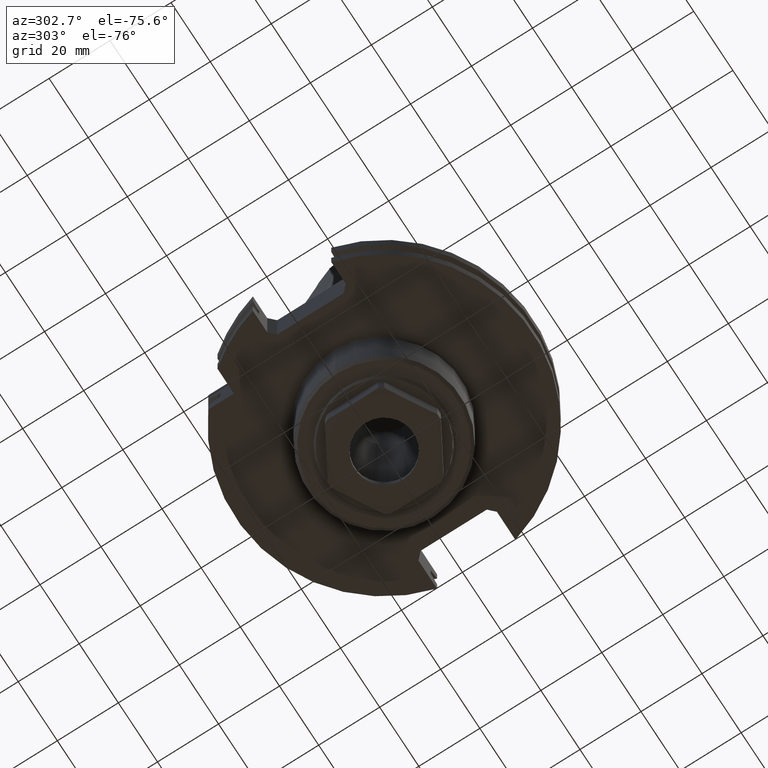
[diagram: clean part render]
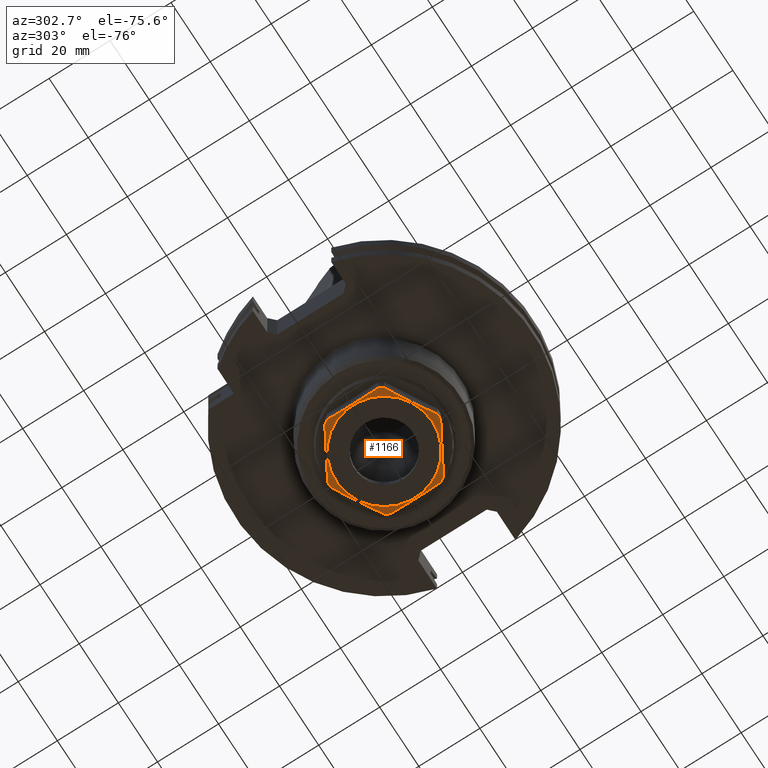
[diagram: same view with one face highlighted and labeled with its STEP entity id]
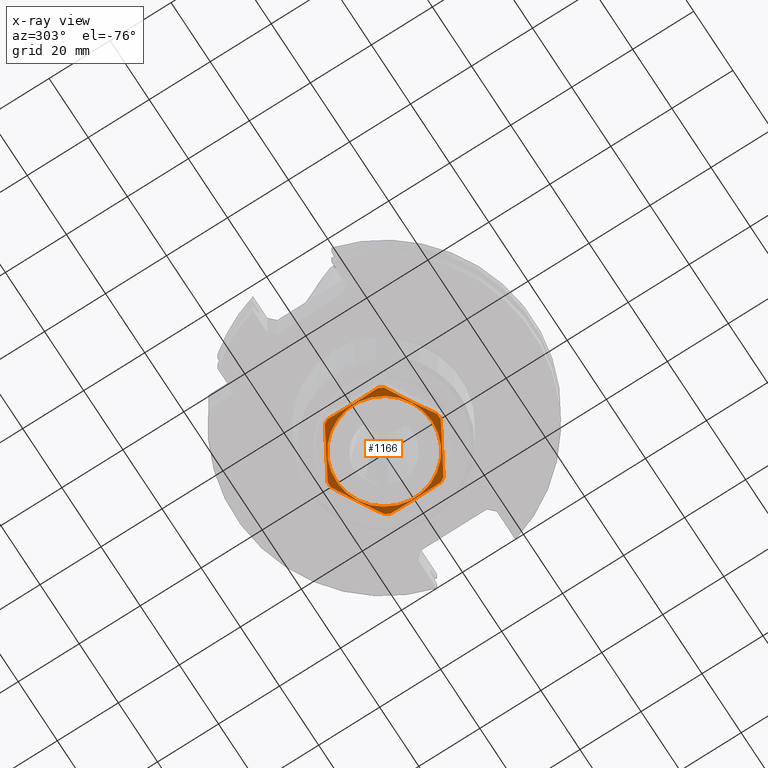
[diagram: x-ray of the same camera — body ghosted, the highlighted face saturated]
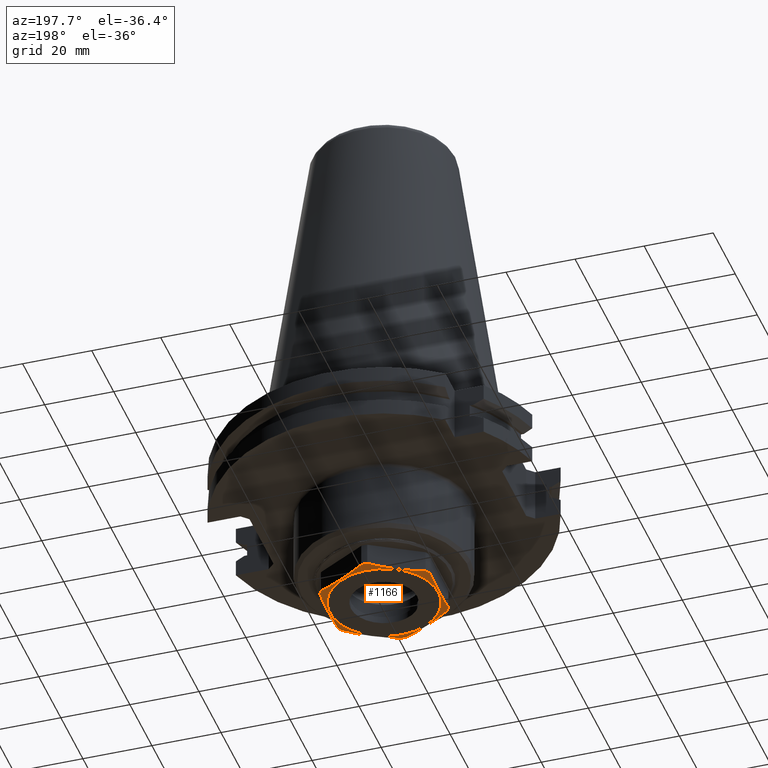
[diagram: same view with one face highlighted and labeled with its STEP entity id]
A machine part, auxiliary view. The second image highlights one B-rep face of the part: STEP entity #1166.
The next image is the same camera in x-ray: the body ghosted, the highlighted face saturated — about 0% of this face is hidden behind the body in this view.
A second angle (auxiliary view) of the same face is appended — the face is thin or edge-on in the first view.
In plain terms, the highlighted conical surface has half-angle 75 deg.
Its self-contained STEP definition (entity closure, byte-faithful):
#205=B_SPLINE_CURVE_WITH_KNOTS('',3,(#1968,#1969,#1970,#1971,#1972),
 .UNSPECIFIED.,.F.,.F.,(4,1,4),(0.0164382055365683,0.0247364222471805,0.0330346389577928),
 .UNSPECIFIED.);
#206=B_SPLINE_CURVE_WITH_KNOTS('',3,(#1977,#1978,#1979,#1980,#1981),
 .UNSPECIFIED.,.F.,.F.,(4,1,4),(1.62915234563908E-6,0.00824784040358091,
0.0164940516548162),.UNSPECIFIED.);
#207=B_SPLINE_CURVE_WITH_KNOTS('',3,(#1985,#1986,#1987,#1988,#1989),
 .UNSPECIFIED.,.F.,.F.,(4,1,4),(1.62915234570411E-6,0.00824784040358096,
0.0164940516548162),.UNSPECIFIED.);
#208=B_SPLINE_CURVE_WITH_KNOTS('',3,(#1993,#1994,#1995,#1996,#1997),
 .UNSPECIFIED.,.F.,.F.,(4,1,4),(0.0164382055365683,0.0247364222471806,0.0330346389577928),
 .UNSPECIFIED.);
#209=B_SPLINE_CURVE_WITH_KNOTS('',3,(#2001,#2002,#2003,#2004,#2005),
 .UNSPECIFIED.,.F.,.F.,(4,1,4),(1.62915234564561E-6,0.00824784040358091,
0.0164940516548162),.UNSPECIFIED.);
#210=B_SPLINE_CURVE_WITH_KNOTS('',3,(#2009,#2010,#2011,#2012,#2013),
 .UNSPECIFIED.,.F.,.F.,(4,1,4),(1.62915234571185E-6,0.00824784040358101,
0.0164940516548163),.UNSPECIFIED.);
#242=CONICAL_SURFACE('',#1285,18.,1.30899693899575);
#475=ORIENTED_EDGE('',*,*,#692,.F.);
#476=ORIENTED_EDGE('',*,*,#693,.F.);
#477=ORIENTED_EDGE('',*,*,#694,.T.);
#478=ORIENTED_EDGE('',*,*,#695,.F.);
#479=ORIENTED_EDGE('',*,*,#696,.T.);
#480=ORIENTED_EDGE('',*,*,#697,.F.);
#481=ORIENTED_EDGE('',*,*,#698,.T.);
#482=ORIENTED_EDGE('',*,*,#699,.F.);
#483=ORIENTED_EDGE('',*,*,#700,.T.);
#484=ORIENTED_EDGE('',*,*,#701,.F.);
#485=ORIENTED_EDGE('',*,*,#702,.T.);
#486=ORIENTED_EDGE('',*,*,#703,.F.);
#487=ORIENTED_EDGE('',*,*,#704,.T.);
#692=EDGE_CURVE('',#822,#822,#891,.T.);
#693=EDGE_CURVE('',#823,#824,#205,.F.);
#694=EDGE_CURVE('',#823,#825,#892,.T.);
#695=EDGE_CURVE('',#826,#825,#206,.T.);
#696=EDGE_CURVE('',#826,#827,#893,.T.);
#697=EDGE_CURVE('',#828,#827,#207,.T.);
#698=EDGE_CURVE('',#828,#829,#894,.T.);
#699=EDGE_CURVE('',#830,#829,#208,.T.);
#700=EDGE_CURVE('',#830,#831,#895,.T.);
#701=EDGE_CURVE('',#832,#831,#209,.T.);
#702=EDGE_CURVE('',#832,#833,#896,.T.);
#703=EDGE_CURVE('',#834,#833,#210,.T.);
#704=EDGE_CURVE('',#834,#824,#897,.T.);
#822=VERTEX_POINT('',#1966);
#823=VERTEX_POINT('',#1973);
#824=VERTEX_POINT('',#1974);
#825=VERTEX_POINT('',#1976);
#826=VERTEX_POINT('',#1982);
#827=VERTEX_POINT('',#1984);
#828=VERTEX_POINT('',#1990);
#829=VERTEX_POINT('',#1992);
#830=VERTEX_POINT('',#1998);
#831=VERTEX_POINT('',#2000);
#832=VERTEX_POINT('',#2006);
#833=VERTEX_POINT('',#2008);
#834=VERTEX_POINT('',#2014);
#891=CIRCLE('',#1284,15.7607695154587);
#892=CIRCLE('',#1286,18.);
#893=CIRCLE('',#1287,18.);
#894=CIRCLE('',#1288,18.);
#895=CIRCLE('',#1289,18.);
#896=CIRCLE('',#1290,18.);
#897=CIRCLE('',#1291,18.);
#966=EDGE_LOOP('',(#475));
#967=EDGE_LOOP('',(#476,#477,#478,#479,#480,#481,#482,#483,#484,#485,#486,
#487));
#1055=FACE_BOUND('',#966,.T.);
#1056=FACE_BOUND('',#967,.T.);
#1166=ADVANCED_FACE('',(#1055,#1056),#242,.T.);
#1284=AXIS2_PLACEMENT_3D('',#1965,#1552,#1553);
#1285=AXIS2_PLACEMENT_3D('',#1967,#1554,#1555);
#1286=AXIS2_PLACEMENT_3D('',#1975,#1556,#1557);
#1287=AXIS2_PLACEMENT_3D('',#1983,#1558,#1559);
#1288=AXIS2_PLACEMENT_3D('',#1991,#1560,#1561);
#1289=AXIS2_PLACEMENT_3D('',#1999,#1562,#1563);
#1290=AXIS2_PLACEMENT_3D('',#2007,#1564,#1565);
#1291=AXIS2_PLACEMENT_3D('',#2015,#1566,#1567);
#1552=DIRECTION('',(-1.87792207848866E-16,-1.75763447640537E-16,-1.));
#1553=DIRECTION('',(-2.77555756156289E-17,-1.,-7.43821416617148E-17));
#1554=DIRECTION('',(1.87792207848866E-16,1.75763447640537E-16,1.));
#1555=DIRECTION('',(2.77555756156289E-17,1.,7.43821416617148E-17));
#1556=DIRECTION('',(-1.87792207848866E-16,-1.75763447640537E-16,-1.));
#1557=DIRECTION('',(-2.77555756156289E-17,-1.,-7.43821416617148E-17));
#1558=DIRECTION('',(-1.87792207848866E-16,-1.75763447640537E-16,-1.));
#1559=DIRECTION('',(-2.77555756156289E-17,-1.,-7.43821416617148E-17));
#1560=DIRECTION('',(-1.87792207848866E-16,-1.75763447640537E-16,-1.));
#1561=DIRECTION('',(-2.77555756156289E-17,-1.,-7.43821416617148E-17));
#1562=DIRECTION('',(-1.87792207848866E-16,-1.75763447640537E-16,-1.));
#1563=DIRECTION('',(-2.77555756156289E-17,-1.,-7.43821416617148E-17));
#1564=DIRECTION('',(-1.87792207848866E-16,-1.75763447640537E-16,-1.));
#1565=DIRECTION('',(-2.77555756156289E-17,-1.,-7.43821416617148E-17));
#1566=DIRECTION('',(-1.87792207848866E-16,-1.75763447640537E-16,-1.));
#1567=DIRECTION('',(-2.77555756156289E-17,-1.,-7.43821416617148E-17));
#1965=CARTESIAN_POINT('',(-3.26758441657027E-15,-3.05828398894535E-15,-48.));
#1966=CARTESIAN_POINT('',(-3.70503364661708E-15,-15.7607695154587,-48.));
#1967=CARTESIAN_POINT('',(-3.15490909186095E-15,-2.95282592036103E-15,-47.4));
#1968=CARTESIAN_POINT('',(16.,8.24621125123533,-47.4));
#1969=CARTESIAN_POINT('',(16.,5.49643769089579,-47.7375447328619));
#1970=CARTESIAN_POINT('',(16.,-0.0240830872598372,-48.1348984630806));
#1971=CARTESIAN_POINT('',(16.,-5.50702865549625,-47.7362446533323));
#1972=CARTESIAN_POINT('',(16.,-8.24621125123531,-47.4));
#1973=CARTESIAN_POINT('',(16.,-8.24621125123532,-47.4));
#1974=CARTESIAN_POINT('',(16.,8.24621125123533,-47.4));
#1975=CARTESIAN_POINT('',(-3.15490909186095E-15,-2.95282592036103E-15,-47.4));
#1976=CARTESIAN_POINT('',(15.1414284285428,-9.73330083493338,-47.4));
#1977=CARTESIAN_POINT('',(0.85857157145722,-17.9795120861687,-47.4));
#1978=CARTESIAN_POINT('',(3.23904771430482,-16.6051435442961,-47.7374175015799));
#1979=CARTESIAN_POINT('',(8.00000000000002,-13.856406460551,-48.1343792681446));
#1980=CARTESIAN_POINT('',(12.7609522856952,-11.1076693768059,-47.7374175015799));
#1981=CARTESIAN_POINT('',(15.1414284285428,-9.73330083493336,-47.4));
#1982=CARTESIAN_POINT('',(0.858571571457233,-17.9795120861687,-47.4));
#1983=CARTESIAN_POINT('',(-3.15490909186095E-15,-2.95282592036103E-15,-47.4));
#1984=CARTESIAN_POINT('',(-0.85857157145723,-17.9795120861687,-47.4));
#1985=CARTESIAN_POINT('',(-15.1414284285428,-9.73330083493342,-47.4));
#1986=CARTESIAN_POINT('',(-12.7609522856952,-11.107669376806,-47.7374175015799));
#1987=CARTESIAN_POINT('',(-8.00000000000002,-13.856406460551,-48.1343792681445));
#1988=CARTESIAN_POINT('',(-3.23904771430483,-16.6051435442961,-47.7374175015799));
#1989=CARTESIAN_POINT('',(-0.858571571457228,-17.9795120861687,-47.4));
#1990=CARTESIAN_POINT('',(-15.1414284285428,-9.73330083493342,-47.4));
#1991=CARTESIAN_POINT('',(-3.15490909186095E-15,-2.95282592036103E-15,-47.4));
#1992=CARTESIAN_POINT('',(-16.,-8.24621125123535,-47.4));
#1993=CARTESIAN_POINT('',(-16.,8.24621125123531,-47.4));
#1994=CARTESIAN_POINT('',(-16.,5.49643769089577,-47.7375447328619));
#1995=CARTESIAN_POINT('',(-16.,-0.0240830872598758,-48.1348984630806));
#1996=CARTESIAN_POINT('',(-16.,-5.50702865549631,-47.7362446533323));
#1997=CARTESIAN_POINT('',(-16.,-8.24621125123537,-47.4));
#1998=CARTESIAN_POINT('',(-16.,8.24621125123531,-47.4));
#1999=CARTESIAN_POINT('',(-3.15490909186095E-15,-2.95282592036103E-15,-47.4));
#2000=CARTESIAN_POINT('',(-15.1414284285428,9.73330083493341,-47.4));
#2001=CARTESIAN_POINT('',(-0.85857157145723,17.9795120861687,-47.4));
#2002=CARTESIAN_POINT('',(-3.23904771430483,16.6051435442961,-47.7374175015799));
#2003=CARTESIAN_POINT('',(-8.00000000000003,13.8564064605511,-48.1343792681445));
#2004=CARTESIAN_POINT('',(-12.7609522856952,11.107669376806,-47.7374175015799));
#2005=CARTESIAN_POINT('',(-15.1414284285428,9.73330083493342,-47.4));
#2006=CARTESIAN_POINT('',(-0.858571571457221,17.9795120861687,-47.4));
#2007=CARTESIAN_POINT('',(-3.15490909186095E-15,-2.95282592036103E-15,-47.4));
#2008=CARTESIAN_POINT('',(0.858571571457218,17.9795120861687,-47.4));
#2009=CARTESIAN_POINT('',(15.1414284285429,9.73330083493335,-47.4));
#2010=CARTESIAN_POINT('',(12.7609522856953,11.1076693768059,-47.7374175015799));
#2011=CARTESIAN_POINT('',(8.00000000000004,13.856406460551,-48.1343792681446));
#2012=CARTESIAN_POINT('',(3.23904771430482,16.6051435442961,-47.7374175015799));
#2013=CARTESIAN_POINT('',(0.858571571457219,17.9795120861687,-47.4));
#2014=CARTESIAN_POINT('',(15.1414284285429,9.73330083493335,-47.4));
#2015=CARTESIAN_POINT('',(-3.15490909186095E-15,-2.95282592036103E-15,-47.4));